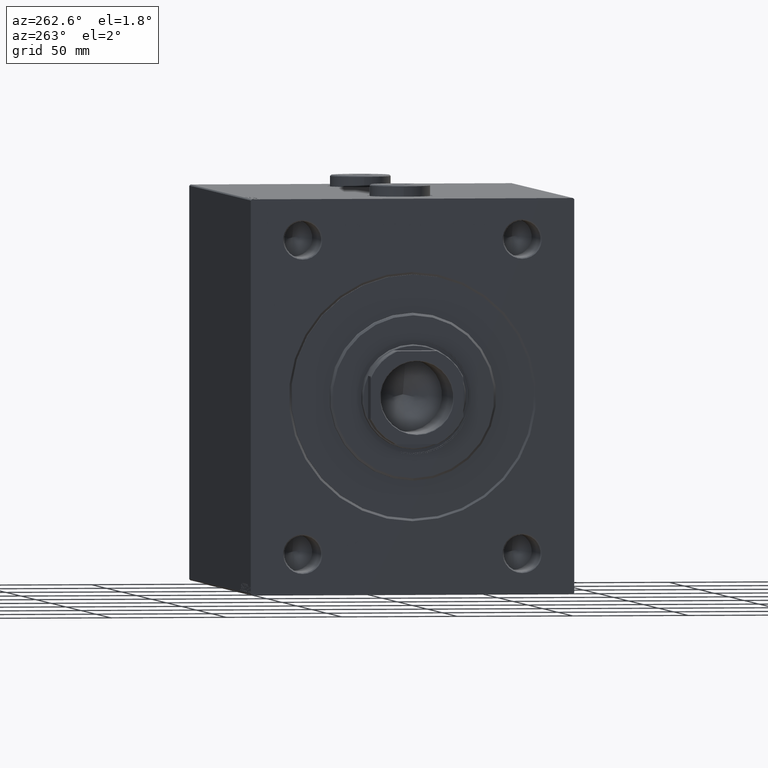
[diagram: clean part render]
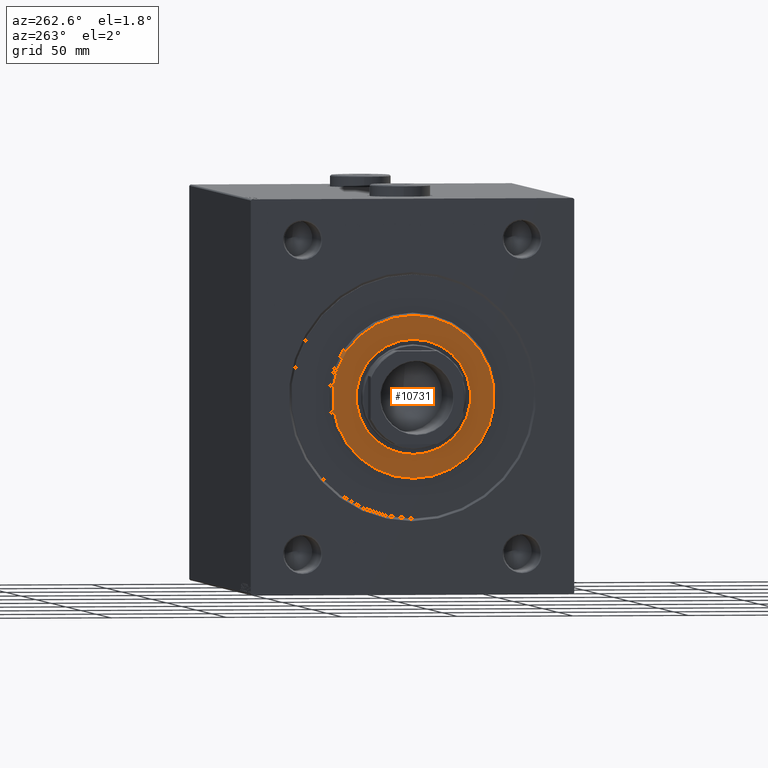
[diagram: same view with one face highlighted and labeled with its STEP entity id]
A machine part, auxiliary view. The second image highlights one B-rep face of the part: STEP entity #10731.
In plain terms, the highlighted planar face has unit normal (-1, 0, 0).
Its self-contained STEP definition (entity closure, byte-faithful):
#649 = CIRCLE ( 'NONE', #36074, 24.75000000000000355 ) ;
#1207 = DIRECTION ( 'NONE',  ( 1.000000000000000000, -0.000000000000000000, 0.000000000000000000 ) ) ;
#1461 = CARTESIAN_POINT ( 'NONE',  ( 3.000000000000000000, 0.000000000000000000, 35.00000000000002842 ) ) ;
#2450 = DIRECTION ( 'NONE',  ( 0.000000000000000000, 0.000000000000000000, -1.000000000000000000 ) ) ;
#2911 = EDGE_LOOP ( 'NONE', ( #36389, #13422 ) ) ;
#3870 = AXIS2_PLACEMENT_3D ( 'NONE', #33324, #1207, #12278 ) ;
#5448 = CIRCLE ( 'NONE', #28282, 35.00000000000002842 ) ;
#6097 = EDGE_CURVE ( 'NONE', #35594, #14849, #20075, .T. ) ;
#6533 = DIRECTION ( 'NONE',  ( 1.000000000000000000, -0.000000000000000000, 0.000000000000000000 ) ) ;
#7559 = AXIS2_PLACEMENT_3D ( 'NONE', #21054, #6533, #39083 ) ;
#8437 = DIRECTION ( 'NONE',  ( 0.000000000000000000, 0.000000000000000000, -1.000000000000000000 ) ) ;
#8581 = CARTESIAN_POINT ( 'NONE',  ( 3.000000000000000000, 0.000000000000000000, 0.000000000000000000 ) ) ;
#8668 = CARTESIAN_POINT ( 'NONE',  ( 3.000000000000000000, 0.000000000000000000, 0.000000000000000000 ) ) ;
#10731 = ADVANCED_FACE ( 'NONE', ( #27994, #24977 ), #42102, .T. ) ;
#12278 = DIRECTION ( 'NONE',  ( 0.000000000000000000, 0.000000000000000000, -1.000000000000000000 ) ) ;
#13305 = CARTESIAN_POINT ( 'NONE',  ( 3.000000000000000000, 0.000000000000000000, 0.000000000000000000 ) ) ;
#13422 = ORIENTED_EDGE ( 'NONE', *, *, #45652, .F. ) ;
#14283 = EDGE_CURVE ( 'NONE', #14849, #35594, #5448, .T. ) ;
#14849 = VERTEX_POINT ( 'NONE', #1461 ) ;
#18163 = AXIS2_PLACEMENT_3D ( 'NONE', #8668, #19502, #8437 ) ;
#18253 = ORIENTED_EDGE ( 'NONE', *, *, #6097, .T. ) ;
#19502 = DIRECTION ( 'NONE',  ( 1.000000000000000000, 0.000000000000000000, 0.000000000000000000 ) ) ;
#20075 = CIRCLE ( 'NONE', #3870, 35.00000000000002842 ) ;
#20504 = CARTESIAN_POINT ( 'NONE',  ( 3.000000000000000000, 3.031000827889699650E-15, 24.75000000000000355 ) ) ;
#21054 = CARTESIAN_POINT ( 'NONE',  ( 3.000000000000000000, 0.000000000000000000, 0.000000000000000000 ) ) ;
#22651 = DIRECTION ( 'NONE',  ( 1.000000000000000000, 0.000000000000000000, 0.000000000000000000 ) ) ;
#24977 = FACE_BOUND ( 'NONE', #2911, .T. ) ;
#27994 = FACE_OUTER_BOUND ( 'NONE', #37320, .T. ) ;
#28282 = AXIS2_PLACEMENT_3D ( 'NONE', #13305, #40795, #2450 ) ;
#33324 = CARTESIAN_POINT ( 'NONE',  ( 3.000000000000000000, 0.000000000000000000, 0.000000000000000000 ) ) ;
#35006 = CARTESIAN_POINT ( 'NONE',  ( 3.000000000000000000, 0.000000000000000000, -24.75000000000000355 ) ) ;
#35198 = EDGE_CURVE ( 'NONE', #45369, #40475, #38836, .T. ) ;
#35594 = VERTEX_POINT ( 'NONE', #45550 ) ;
#36074 = AXIS2_PLACEMENT_3D ( 'NONE', #8581, #22651, #36770 ) ;
#36389 = ORIENTED_EDGE ( 'NONE', *, *, #35198, .F. ) ;
#36770 = DIRECTION ( 'NONE',  ( 0.000000000000000000, 0.000000000000000000, -1.000000000000000000 ) ) ;
#37320 = EDGE_LOOP ( 'NONE', ( #40031, #18253 ) ) ;
#38836 = CIRCLE ( 'NONE', #18163, 24.75000000000000355 ) ;
#39083 = DIRECTION ( 'NONE',  ( 0.000000000000000000, 0.000000000000000000, -1.000000000000000000 ) ) ;
#40031 = ORIENTED_EDGE ( 'NONE', *, *, #14283, .T. ) ;
#40475 = VERTEX_POINT ( 'NONE', #20504 ) ;
#40795 = DIRECTION ( 'NONE',  ( 1.000000000000000000, -0.000000000000000000, 0.000000000000000000 ) ) ;
#42102 = PLANE ( 'NONE',  #7559 ) ;
#45369 = VERTEX_POINT ( 'NONE', #35006 ) ;
#45550 = CARTESIAN_POINT ( 'NONE',  ( 3.000000000000000000, 4.347496136973104859E-15, -35.00000000000002842 ) ) ;
#45652 = EDGE_CURVE ( 'NONE', #40475, #45369, #649, .T. ) ;